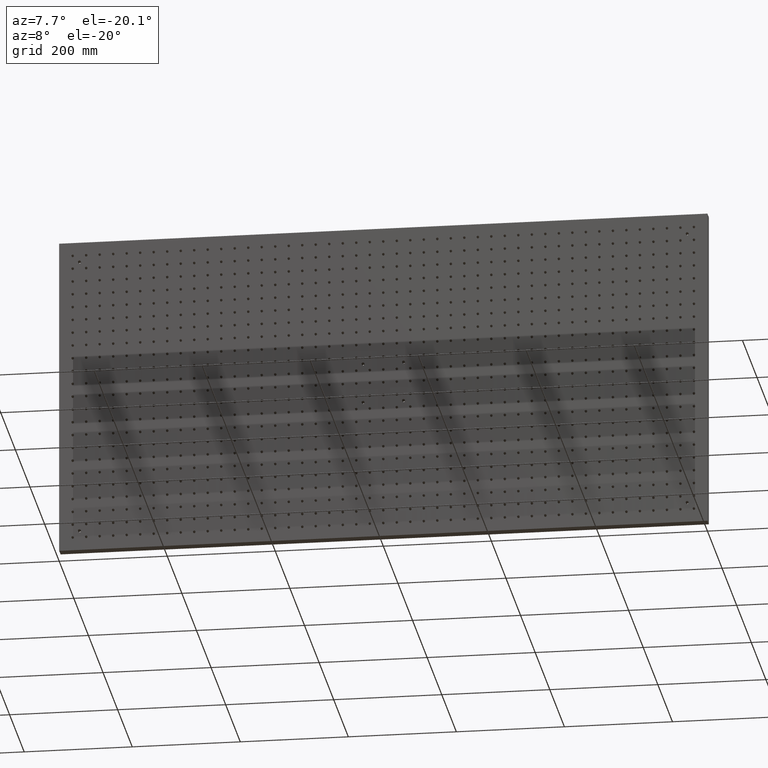
[diagram: clean part render]
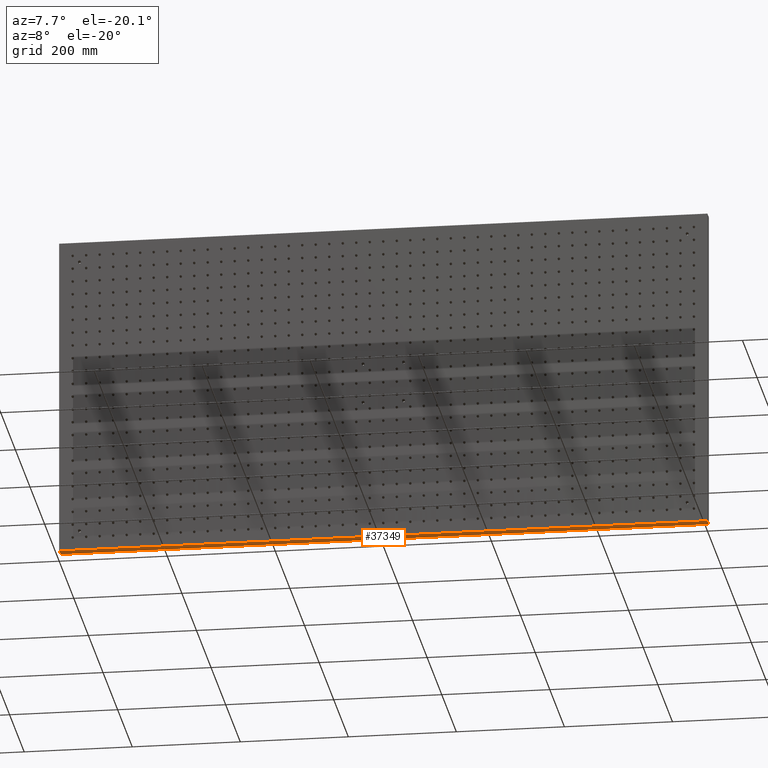
[diagram: same view with one face highlighted and labeled with its STEP entity id]
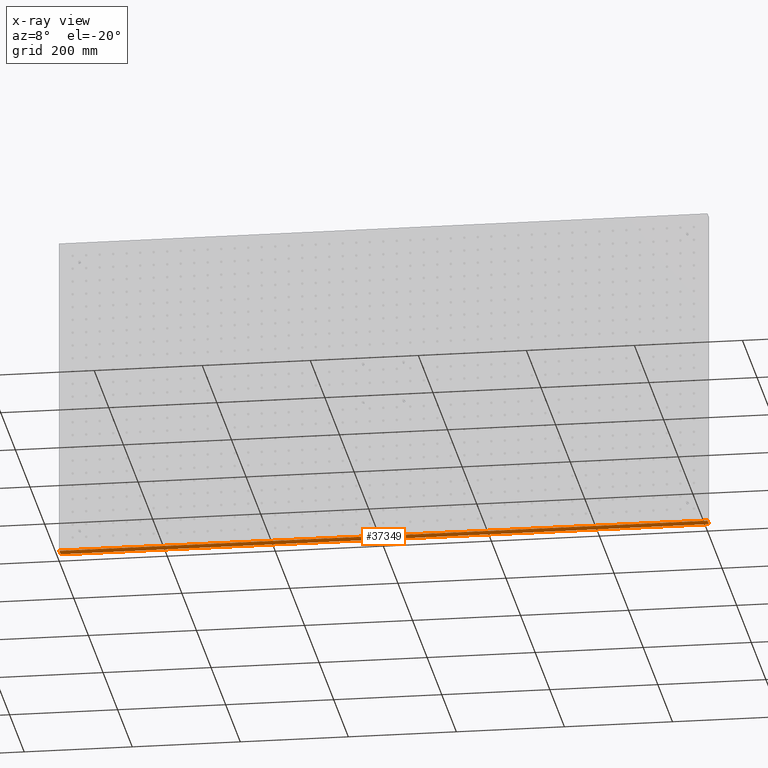
[diagram: x-ray of the same camera — body ghosted, the highlighted face saturated]
A machine part, auxiliary view. The second image highlights one B-rep face of the part: STEP entity #37349.
The next image is the same camera in x-ray: the body ghosted, the highlighted face saturated — about 0% of this face is hidden behind the body in this view.
In plain terms, the highlighted planar face has unit normal (0, 0, 1).
Its self-contained STEP definition (entity closure, byte-faithful):
#1249 = VECTOR ( 'NONE', #10010, 1000.000000000000000 ) ;
#2219 = DIRECTION ( 'NONE',  ( 0.000000000000000000, 0.000000000000000000, 1.000000000000000000 ) ) ;
#2439 = EDGE_CURVE ( 'NONE', #17112, #32045, #33282, .T. ) ;
#3411 = ORIENTED_EDGE ( 'NONE', *, *, #5746, .T. ) ;
#4842 = FACE_OUTER_BOUND ( 'NONE', #28075, .T. ) ;
#5746 = EDGE_CURVE ( 'NONE', #22897, #32045, #12477, .T. ) ;
#7052 = LINE ( 'NONE', #30038, #37085 ) ;
#7084 = CARTESIAN_POINT ( 'NONE',  ( 0.000000000000000000, 19.00000000000000000, -299.9999999999998295 ) ) ;
#8163 = DIRECTION ( 'NONE',  ( -0.000000000000000000, -1.000000000000000000, -0.000000000000000000 ) ) ;
#10010 = DIRECTION ( 'NONE',  ( 0.000000000000000000, 1.000000000000000000, 0.000000000000000000 ) ) ;
#10999 = CARTESIAN_POINT ( 'NONE',  ( -599.9999999999998863, 0.000000000000000000, -299.9999999999998295 ) ) ;
#11093 = PLANE ( 'NONE',  #36269 ) ;
#12477 = LINE ( 'NONE', #21761, #1249 ) ;
#13119 = CARTESIAN_POINT ( 'NONE',  ( -599.9999999999998863, 19.00000000000000000, -299.9999999999998295 ) ) ;
#14225 = VECTOR ( 'NONE', #30431, 1000.000000000000000 ) ;
#15432 = CARTESIAN_POINT ( 'NONE',  ( 600.0000000000001137, 0.000000000000000000, -299.9999999999998295 ) ) ;
#17112 = VERTEX_POINT ( 'NONE', #24204 ) ;
#17683 = VECTOR ( 'NONE', #8163, 1000.000000000000000 ) ;
#19007 = DIRECTION ( 'NONE',  ( -1.000000000000000000, -0.000000000000000000, 0.000000000000000000 ) ) ;
#21761 = CARTESIAN_POINT ( 'NONE',  ( -599.9999999999998863, 19.00000000000000000, -299.9999999999998295 ) ) ;
#22570 = CARTESIAN_POINT ( 'NONE',  ( 600.0000000000001137, 19.00000000000000000, -299.9999999999998295 ) ) ;
#22706 = EDGE_CURVE ( 'NONE', #24631, #22897, #7052, .T. ) ;
#22897 = VERTEX_POINT ( 'NONE', #10999 ) ;
#23895 = ORIENTED_EDGE ( 'NONE', *, *, #22706, .T. ) ;
#24204 = CARTESIAN_POINT ( 'NONE',  ( 600.0000000000001137, 19.00000000000000000, -299.9999999999998295 ) ) ;
#24631 = VERTEX_POINT ( 'NONE', #15432 ) ;
#25851 = ORIENTED_EDGE ( 'NONE', *, *, #2439, .F. ) ;
#27080 = EDGE_CURVE ( 'NONE', #17112, #24631, #37011, .T. ) ;
#28075 = EDGE_LOOP ( 'NONE', ( #3411, #25851, #34208, #23895 ) ) ;
#30038 = CARTESIAN_POINT ( 'NONE',  ( -599.9999999999998863, 0.000000000000000000, -299.9999999999998295 ) ) ;
#30431 = DIRECTION ( 'NONE',  ( -1.000000000000000000, -0.000000000000000000, 0.000000000000000000 ) ) ;
#32045 = VERTEX_POINT ( 'NONE', #13119 ) ;
#33282 = LINE ( 'NONE', #7084, #14225 ) ;
#34208 = ORIENTED_EDGE ( 'NONE', *, *, #27080, .T. ) ;
#34453 = CARTESIAN_POINT ( 'NONE',  ( -599.9999999999998863, 19.00000000000000000, -299.9999999999998295 ) ) ;
#36269 = AXIS2_PLACEMENT_3D ( 'NONE', #34453, #2219, #36561 ) ;
#36561 = DIRECTION ( 'NONE',  ( 1.000000000000000000, 0.000000000000000000, -0.000000000000000000 ) ) ;
#37011 = LINE ( 'NONE', #22570, #17683 ) ;
#37085 = VECTOR ( 'NONE', #19007, 1000.000000000000000 ) ;
#37349 = ADVANCED_FACE ( 'NONE', ( #4842 ), #11093, .F. ) ;